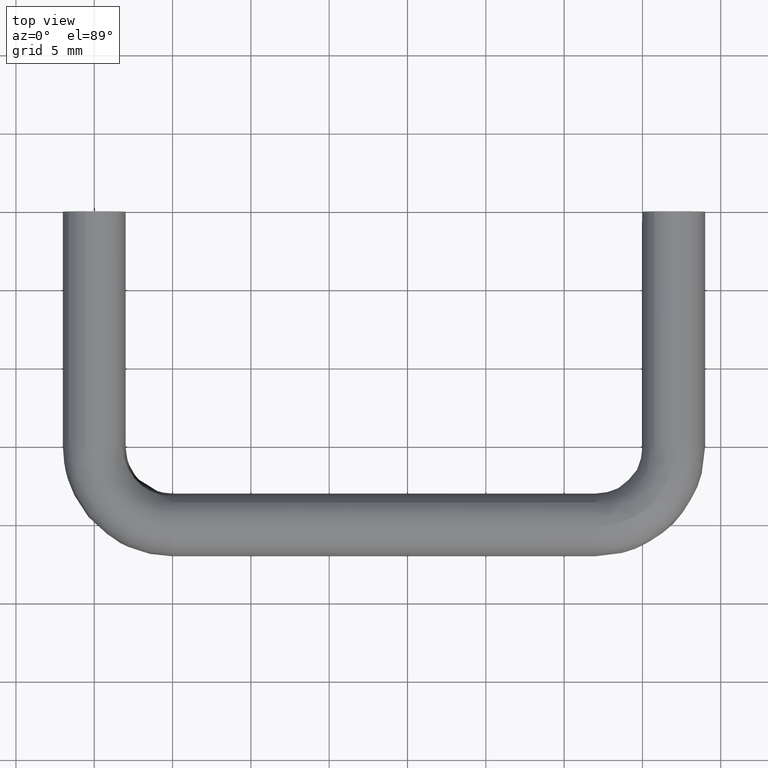
[diagram: clean part render]
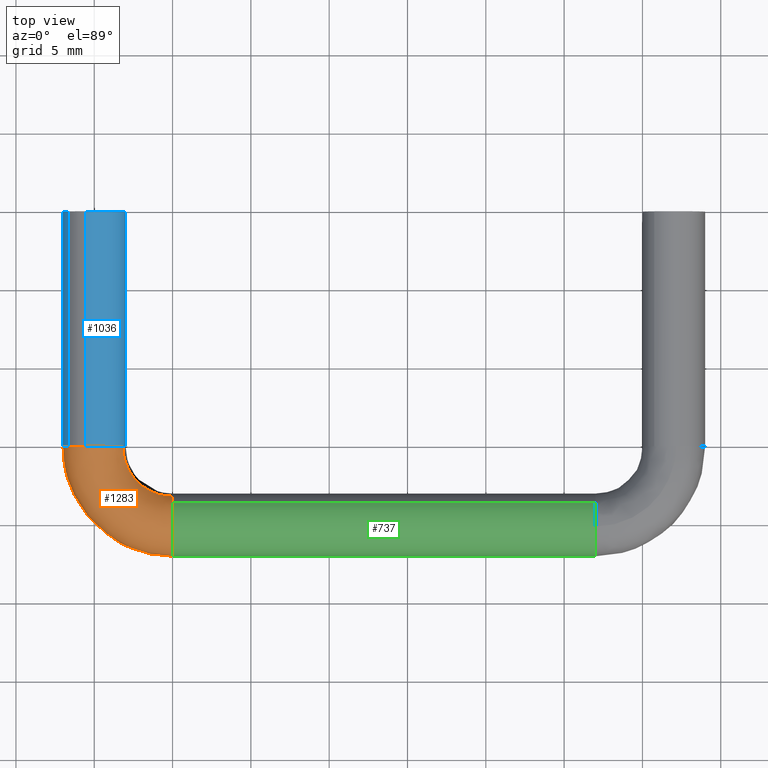
[diagram: same view with three faces highlighted in distinct colors, each labeled with its STEP entity id]
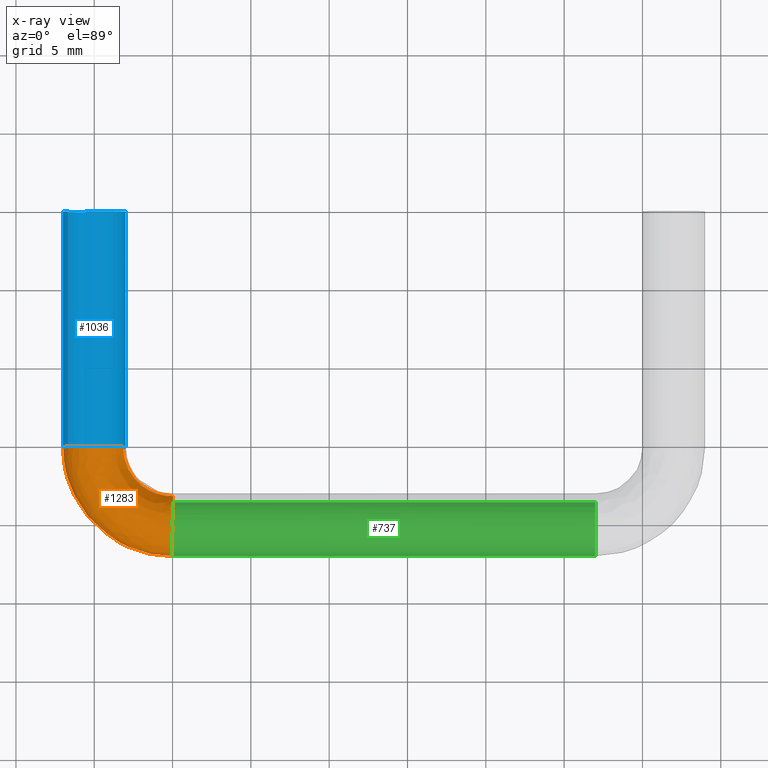
[diagram: x-ray of the same camera — body ghosted, the three highlighted faces saturated]
A machine part, top view with three faces highlighted in distinct colors.
The next image is the same camera in x-ray (body ghosted, the three faces saturated) — at least one of them is partly hidden behind the body in this view.
Their STEP definitions:

[orange] entity #1283 — the highlighted face is a freeform B-spline surface patch.
#661=CARTESIAN_POINT('',(5.000000000019877,-18.591260119800999,1.419666140301064));
#662=VERTEX_POINT('',#661);
#668=CARTESIAN_POINT('',(5.0,-22.0,0.0));
#669=VERTEX_POINT('',#668);
#670=CARTESIAN_POINT('',(5.0,-22.0,0.0));
#671=CARTESIAN_POINT('',(5.000000000000001,-22.000000000000007,2.000000000000000));
#672=CARTESIAN_POINT('',(5.0,-20.0,2.0));
#673=CARTESIAN_POINT('',(5.0,-19.176095105796154,2.000000000000000));
#674=CARTESIAN_POINT('',(5.000000000019877,-18.591260119801010,1.419666140301064));
#682=(BOUNDED_CURVE()B_SPLINE_CURVE(2,(#670,#671,#672,#673,#674),.UNSPECIFIED.,.F.,.U.)B_SPLINE_CURVE_WITH_KNOTS((3,2,3),(0.500000000000000,0.750000000000000,0.874417110250491),.UNSPECIFIED.)CURVE()GEOMETRIC_REPRESENTATION_ITEM()RATIONAL_B_SPLINE_CURVE((1.0,0.707106781186548,1.0,0.854236288413062,0.853556575026387))REPRESENTATION_ITEM(''));
#683=EDGE_CURVE('',#669,#662,#682,.T.);
#685=CARTESIAN_POINT('',(4.999999182295871,-21.325239809866911,-1.497911695108569));
#686=VERTEX_POINT('',#685);
#687=CARTESIAN_POINT('',(4.999999182295872,-21.325239809866911,-1.497911695108569));
#688=CARTESIAN_POINT('',(4.999999703351359,-22.000000000000114,-0.900934767641625));
#689=CARTESIAN_POINT('',(5.0,-22.0,0.0));
#697=(BOUNDED_CURVE()B_SPLINE_CURVE(2,(#687,#688,#689),.UNSPECIFIED.,.F.,.U.)B_SPLINE_CURVE_WITH_KNOTS((3,3),(0.365779830272935,0.500000000000000),.UNSPECIFIED.)CURVE()GEOMETRIC_REPRESENTATION_ITEM()RATIONAL_B_SPLINE_CURVE((0.854350168212415,0.842751289835808,1.0))REPRESENTATION_ITEM(''));
#698=EDGE_CURVE('',#686,#669,#697,.T.);
#802=CARTESIAN_POINT('',(4.999998076415995,-19.276704659011020,-1.864629681651536));
#803=VERTEX_POINT('',#802);
#804=CARTESIAN_POINT('',(4.999998076415995,-19.276704659011028,-1.864629681651536));
#805=CARTESIAN_POINT('',(4.999998199665956,-19.625684528366516,-1.999999999998314));
#806=CARTESIAN_POINT('',(4.999998379672770,-20.000000000000590,-1.999999999998482));
#807=CARTESIAN_POINT('',(4.999998744062953,-20.757731779851195,-1.999999999998824));
#808=CARTESIAN_POINT('',(4.999999182295871,-21.325239809866908,-1.497911695108569));
#816=(BOUNDED_CURVE()B_SPLINE_CURVE(2,(#804,#805,#806,#807,#808),.UNSPECIFIED.,.F.,.U.)B_SPLINE_CURVE_WITH_KNOTS((3,2,3),(0.188590419563113,0.250000000000000,0.365779830272935),.UNSPECIFIED.)CURVE()GEOMETRIC_REPRESENTATION_ITEM()RATIONAL_B_SPLINE_CURVE((0.891453693067869,0.928054201279426,1.0,0.864355491350739,0.854350168212415))REPRESENTATION_ITEM(''));
#817=EDGE_CURVE('',#803,#686,#816,.T.);
#834=CARTESIAN_POINT('',(5.000000000040116,-18.179788058653141,0.828751162037366));
#835=VERTEX_POINT('',#834);
#849=CARTESIAN_POINT('',(5.000000000019877,-18.591260119801010,1.419666140301064));
#850=CARTESIAN_POINT('',(5.000000000028706,-18.331453841666921,1.161859436222239));
#851=CARTESIAN_POINT('',(5.000000000040115,-18.179788058653134,0.828751162037366));
#859=(BOUNDED_CURVE()B_SPLINE_CURVE(2,(#849,#850,#851),.UNSPECIFIED.,.F.,.U.)B_SPLINE_CURVE_WITH_KNOTS((3,3),(0.874417110250492,0.929624510033231),.UNSPECIFIED.)CURVE()GEOMETRIC_REPRESENTATION_ITEM()RATIONAL_B_SPLINE_CURVE((0.853556575026387,0.853254966922805,0.881519651443544))REPRESENTATION_ITEM(''));
#860=EDGE_CURVE('',#662,#835,#859,.T.);
#892=CARTESIAN_POINT('',(-1.999999999999998,-15.0,0.0));
#893=VERTEX_POINT('',#892);
#894=CARTESIAN_POINT('',(-1.654334544362889,-15.0,1.123911569175985));
#895=VERTEX_POINT('',#894);
#896=CARTESIAN_POINT('',(-1.999999999999998,-15.0,0.0));
#897=CARTESIAN_POINT('',(-1.999999999999998,-15.000000000000002,0.615111482286668));
#898=CARTESIAN_POINT('',(-1.654334544362889,-14.999999999999998,1.123911569175985));
#906=(BOUNDED_CURVE()B_SPLINE_CURVE(2,(#896,#897,#898),.UNSPECIFIED.,.F.,.U.)B_SPLINE_CURVE_WITH_KNOTS((3,3),(0.500000000000000,0.596450219094675),.UNSPECIFIED.)CURVE()GEOMETRIC_REPRESENTATION_ITEM()RATIONAL_B_SPLINE_CURVE((1.0,0.887001539496392,0.861192889176255))REPRESENTATION_ITEM(''));
#907=EDGE_CURVE('',#893,#895,#906,.T.);
#965=CARTESIAN_POINT('',(-0.568029238874980,-15.0,1.917639899402601));
#966=VERTEX_POINT('',#965);
#972=CARTESIAN_POINT('',(1.820211941307585,-15.000000000132131,0.828751162123636));
#973=VERTEX_POINT('',#972);
#974=CARTESIAN_POINT('',(-0.568029238874980,-15.000000000000005,1.917639899402601));
#975=CARTESIAN_POINT('',(-0.289985426665518,-14.999999999999998,2.000000000000000));
#976=CARTESIAN_POINT('',(1.836910E-015,-15.0,2.0));
#977=CARTESIAN_POINT('',(1.286936769503952,-14.999999999999995,2.000000000000000));
#978=CARTESIAN_POINT('',(1.820211941307585,-15.000000000132138,0.828751162123636));
#986=(BOUNDED_CURVE()B_SPLINE_CURVE(2,(#974,#975,#976,#977,#978),.UNSPECIFIED.,.F.,.U.)B_SPLINE_CURVE_WITH_KNOTS((3,2,3),(0.701641638561408,0.750000000000000,0.929624510018458),.UNSPECIFIED.)CURVE()GEOMETRIC_REPRESENTATION_ITEM()RATIONAL_B_SPLINE_CURVE((0.908607387928295,0.943344655446826,1.0,0.789556796331618,0.881519651428418))REPRESENTATION_ITEM(''));
#987=EDGE_CURVE('',#966,#973,#986,.T.);
#1004=CARTESIAN_POINT('',(0.723292547146406,-15.000000000216991,-1.864630765390957));
#1005=VERTEX_POINT('',#1004);
#1019=CARTESIAN_POINT('',(0.723292547146406,-15.000000000216989,-1.864630765390957));
#1020=CARTESIAN_POINT('',(0.374313920989274,-15.000000000000004,-2.000000000000000));
#1021=CARTESIAN_POINT('',(1.836910E-015,-15.0,-2.0));
#1022=CARTESIAN_POINT('',(-1.999999999999998,-14.999999999999995,-2.000000000000000));
#1023=CARTESIAN_POINT('',(-1.999999999999998,-15.0,0.0));
#1031=(BOUNDED_CURVE()B_SPLINE_CURVE(2,(#1019,#1020,#1021,#1022,#1023),.UNSPECIFIED.,.F.,.U.)B_SPLINE_CURVE_WITH_KNOTS((3,2,3),(0.188590655656687,0.250000000000000,0.500000000000000),.UNSPECIFIED.)CURVE()GEOMETRIC_REPRESENTATION_ITEM()RATIONAL_B_SPLINE_CURVE((0.891453974494995,0.928054477880254,1.0,0.707106781186548,1.0))REPRESENTATION_ITEM(''));
#1032=EDGE_CURVE('',#1005,#893,#1031,.T.);
#1055=CARTESIAN_POINT('',(-1.654334544362889,-14.999999999999996,1.123911569175985));
#1056=CARTESIAN_POINT('',(-1.252923911299599,-15.0,1.714765418324617));
#1057=CARTESIAN_POINT('',(-0.568029238874980,-15.000000000000005,1.917639899402601));
#1065=(BOUNDED_CURVE()B_SPLINE_CURVE(2,(#1055,#1056,#1057),.UNSPECIFIED.,.F.,.U.)B_SPLINE_CURVE_WITH_KNOTS((3,3),(0.596450219094674,0.701641638561408),.UNSPECIFIED.)CURVE()GEOMETRIC_REPRESENTATION_ITEM()RATIONAL_B_SPLINE_CURVE((0.861192889176256,0.833045223083025,0.908607387928295))REPRESENTATION_ITEM(''));
#1066=EDGE_CURVE('',#895,#966,#1065,.T.);
#1190=CARTESIAN_POINT('',(0.775814570479479,-14.684258390601009,-1.848828358601665));
#1191=CARTESIAN_POINT('',(0.499429529044453,-18.381907449873200,-1.848828358601666));
#1192=CARTESIAN_POINT('',(4.127972323901496,-19.145238598560720,-1.848828358601666));
#1193=CARTESIAN_POINT('',(4.721547175218090,-19.270108056826359,-1.848828358601666));
#1194=CARTESIAN_POINT('',(5.326311729610633,-19.223382052573250,-1.848828358601665));
#1195=CARTESIAN_POINT('',(0.755587033203281,-14.682746460009813,-1.856696532989326));
#1196=CARTESIAN_POINT('',(0.477878520338914,-18.398101733989829,-1.856696532989326));
#1197=CARTESIAN_POINT('',(4.123796614141955,-19.165088098463144,-1.856696532989326));
#1198=CARTESIAN_POINT('',(4.720213802195782,-19.290555494878973,-1.856696532989326));
#1199=CARTESIAN_POINT('',(5.327874275285883,-19.243605742874124,-1.856696532989326));
#1200=CARTESIAN_POINT('',(-1.020782339847392,-14.549969683494647,-2.547674570167790));
#1201=CARTESIAN_POINT('',(-1.414717266292815,-19.820273396830057,-2.547674570167788));
#1202=CARTESIAN_POINT('',(3.757088456529241,-20.908258471385562,-2.547674570167790));
#1203=CARTESIAN_POINT('',(4.603117837060043,-21.086236413323931,-2.547674570167790));
#1204=CARTESIAN_POINT('',(5.465096036077124,-21.019637277014088,-2.547674570167790));
#1205=CARTESIAN_POINT('',(-1.801239185939189,-14.491633536854549,-0.828751161986569));
#1206=CARTESIAN_POINT('',(-2.246238773570618,-20.445111691961891,-0.828751161986569));
#1207=CARTESIAN_POINT('',(3.595973377386077,-21.674129169277229,-0.828751161986569));
#1208=CARTESIAN_POINT('',(4.551671134011472,-21.875177884314276,-0.828751161986569));
#1209=CARTESIAN_POINT('',(5.525385108984509,-21.799945691876015,-0.828751161986569));
#1210=CARTESIAN_POINT('',(-2.627684892722236,-14.429859899807987,0.991460779383422));
#1211=CARTESIAN_POINT('',(-3.126758155556638,-21.106768936729818,0.991460779383422));
#1212=CARTESIAN_POINT('',(3.425364501158451,-22.485129230834833,0.991460779383422));
#1213=CARTESIAN_POINT('',(4.497192904913289,-22.710608177312658,0.991460779383422));
#1214=CARTESIAN_POINT('',(5.589226749582247,-22.626234221035098,0.991460779383422));
#1215=CARTESIAN_POINT('',(-0.812536494287964,-14.565535259278340,1.820211941369991));
#1216=CARTESIAN_POINT('',(-1.192846063226259,-19.653550560379546,1.820211941369990));
#1217=CARTESIAN_POINT('',(3.800078079922968,-20.703904583184961,1.820211941369990));
#1218=CARTESIAN_POINT('',(4.616845133106254,-20.875726652859925,1.820211941369990));
#1219=CARTESIAN_POINT('',(5.449009369622135,-20.811431036702693,1.820211941369990));
#1220=CARTESIAN_POINT('',(1.002611904146309,-14.701210618748700,2.648963103356558));
#1221=CARTESIAN_POINT('',(0.741066029104122,-18.200332184029268,2.648963103356558));
#1222=CARTESIAN_POINT('',(4.174791658687484,-18.922679935535097,2.648963103356558));
#1223=CARTESIAN_POINT('',(4.736497361299220,-19.040845128407181,2.648963103356558));
#1224=CARTESIAN_POINT('',(5.308791989662021,-18.996627852370285,2.648963103356557));
#1225=CARTESIAN_POINT('',(1.837753957943666,-14.763634274277635,0.809597823114056));
#1226=CARTESIAN_POINT('',(1.630850753066910,-17.531712593207882,0.809597823114056));
#1227=CARTESIAN_POINT('',(4.347195781692025,-18.103146055111903,0.809597823114056));
#1228=CARTESIAN_POINT('',(4.791548842313497,-18.196623947302594,0.809597823114056));
#1229=CARTESIAN_POINT('',(5.244278569834207,-18.161644630112143,0.809597823114056));
#1230=CARTESIAN_POINT('',(1.846374826172559,-14.764278651011189,0.790610723094757));
#1231=CARTESIAN_POINT('',(1.640035677742284,-17.524810675909475,0.790610723094757));
#1232=CARTESIAN_POINT('',(4.348975446863697,-18.094686304390315,0.790610723094758));
#1233=CARTESIAN_POINT('',(4.792117118765956,-18.187909358538629,0.790610723094757));
#1234=CARTESIAN_POINT('',(5.243612621222468,-18.153025401443568,0.790610723094757));
#1242=(BOUNDED_SURFACE()B_SPLINE_SURFACE(2,2,((#1190,#1195,#1200,#1205,#1210,#1215,#1220,#1225,#1230),(#1191,#1196,#1201,#1206,#1211,#1216,#1221,#1226,#1231),(#1192,#1197,#1202,#1207,#1212,#1217,#1222,#1227,#1232),(#1193,#1198,#1203,#1208,#1213,#1218,#1223,#1228,#1233),(#1194,#1199,#1204,#1209,#1214,#1219,#1224,#1229,#1234)),.UNSPECIFIED.,.F.,.F.,.U.)B_SPLINE_SURFACE_WITH_KNOTS((3,2,3),(3,1,2,2,1,3),(0.0,10.331995302682950,12.494687987690400),(0.0,0.050461347654335,3.231621506679723,6.545330005664503,9.859038504649282,9.908566287316283),.UNSPECIFIED.)GEOMETRIC_REPRESENTATION_ITEM()RATIONAL_B_SPLINE_SURFACE(((0.950218290428155,0.946262668435485,0.692938615511372,0.963991257828157,0.681644755414839,0.963991257828157,0.681644755414839,0.968211301990943,0.972431346153729),(0.728218733824082,0.725187264036554,0.531047324902716,0.738773922018271,0.522392050022901,0.738773922018271,0.522392050022901,0.742008037008334,0.745242151998397),(0.985712559851391,0.981609180323259,0.718822509939086,1.0,0.707106781186548,1.0,0.707106781186548,1.004377678872621,1.008755357745242),(0.931813966436503,0.927934958995957,0.679517418598343,0.945320171812547,0.668442303881085,0.945320171812547,0.668442303881085,0.949458479956554,0.953596788100560),(0.898924298495076,0.895182206008864,0.655532907673289,0.911953783596509,0.644848704509821,0.911953783596509,0.644848704509821,0.915946024407767,0.919938265219024)))REPRESENTATION_ITEM('')SURFACE());
#1243=ORIENTED_EDGE('',*,*,#817,.T.);
#1244=ORIENTED_EDGE('',*,*,#698,.T.);
#1245=ORIENTED_EDGE('',*,*,#683,.T.);
#1246=ORIENTED_EDGE('',*,*,#860,.T.);
#1247=CARTESIAN_POINT('',(1.820211941307585,-15.000000000132136,0.828751162123636));
#1248=CARTESIAN_POINT('',(1.820211941584447,-17.580459706936388,0.828751161986568));
#1249=CARTESIAN_POINT('',(4.345400534915110,-18.111679873977490,0.828751161986568));
#1250=CARTESIAN_POINT('',(4.669157089520411,-18.179788058638351,0.828751161986568));
#1251=CARTESIAN_POINT('',(5.000000000040116,-18.179788058653138,0.828751162037366));
#1259=(BOUNDED_CURVE()B_SPLINE_CURVE(2,(#1247,#1248,#1249,#1250,#1251),.UNSPECIFIED.,.F.,.U.)B_SPLINE_CURVE_WITH_KNOTS((3,2,3),(-3.759886875613357,-2.0,-1.712481691703814),.UNSPECIFIED.)CURVE()GEOMETRIC_REPRESENTATION_ITEM()RATIONAL_B_SPLINE_CURVE((0.940720929692562,0.753120240891190,1.0,0.959666469660559,0.930929567731927))REPRESENTATION_ITEM(''));
#1260=EDGE_CURVE('',#973,#835,#1259,.T.);
#1261=ORIENTED_EDGE('',*,*,#1260,.F.);
#1262=ORIENTED_EDGE('',*,*,#987,.F.);
#1263=ORIENTED_EDGE('',*,*,#1066,.F.);
#1264=ORIENTED_EDGE('',*,*,#907,.F.);
#1265=ORIENTED_EDGE('',*,*,#1032,.F.);
#1266=CARTESIAN_POINT('',(0.723292547146406,-15.000000000216993,-1.864630765390957));
#1267=CARTESIAN_POINT('',(0.723292547371148,-18.470629945235213,-1.864630325652976));
#1268=CARTESIAN_POINT('',(4.119585846781998,-19.185101770405229,-1.864629804808369));
#1269=CARTESIAN_POINT('',(4.555026517399832,-19.276704604219240,-1.864629738030590));
#1270=CARTESIAN_POINT('',(4.999998076415995,-19.276704659011028,-1.864629681651536));
#1278=(BOUNDED_CURVE()B_SPLINE_CURVE(2,(#1266,#1267,#1268,#1269,#1270),.UNSPECIFIED.,.F.,.U.)B_SPLINE_CURVE_WITH_KNOTS((3,2,3),(-3.759886875588480,-2.0,-1.712482294589041),.UNSPECIFIED.)CURVE()GEOMETRIC_REPRESENTATION_ITEM()RATIONAL_B_SPLINE_CURVE((0.919560165698679,0.736179404170773,0.977505800795127,0.938079623593068,0.909989170393271))REPRESENTATION_ITEM(''));
#1279=EDGE_CURVE('',#1005,#803,#1278,.T.);
#1280=ORIENTED_EDGE('',*,*,#1279,.T.);
#1281=EDGE_LOOP('',(#1243,#1244,#1245,#1246,#1261,#1262,#1263,#1264,#1265,#1280));
#1282=FACE_OUTER_BOUND('',#1281,.T.);
#1283=ADVANCED_FACE('',(#1282),#1242,.T.);

[blue] entity #1036 — the highlighted face is a freeform B-spline surface patch.
#866=CARTESIAN_POINT('',(-1.654334544363574,0.375000000005425,1.123911569174978));
#867=CARTESIAN_POINT('',(-2.186699413562218,0.375000000005425,0.340300458233743));
#868=CARTESIAN_POINT('',(-1.917639469736385,0.375000000005425,-0.568030689407845));
#869=CARTESIAN_POINT('',(-1.349608780328540,0.375000000005425,-2.485670159144230));
#870=CARTESIAN_POINT('',(0.568030689407845,0.375000000005425,-1.917639469736385));
#871=CARTESIAN_POINT('',(2.485670159144230,0.375000000005426,-1.349608780328540));
#872=CARTESIAN_POINT('',(1.917639469736385,0.375000000005426,0.568030689407845));
#873=CARTESIAN_POINT('',(1.349608780328540,0.375000000005425,2.485670159144230));
#874=CARTESIAN_POINT('',(-0.568030689407845,0.375000000005425,1.917639469736385));
#875=CARTESIAN_POINT('',(-1.654334544363573,-15.384375000222555,1.123911569174978));
#876=CARTESIAN_POINT('',(-2.186699413562216,-15.384375000222546,0.340300458233743));
#877=CARTESIAN_POINT('',(-1.917639469736383,-15.384375000222549,-0.568030689407845));
#878=CARTESIAN_POINT('',(-1.349608780328538,-15.384375000222549,-2.485670159144230));
#879=CARTESIAN_POINT('',(0.568030689407847,-15.384375000222549,-1.917639469736385));
#880=CARTESIAN_POINT('',(2.485670159144233,-15.384375000222549,-1.349608780328540));
#881=CARTESIAN_POINT('',(1.917639469736387,-15.384375000222549,0.568030689407845));
#882=CARTESIAN_POINT('',(1.349608780328542,-15.384375000222549,2.485670159144230));
#883=CARTESIAN_POINT('',(-0.568030689407843,-15.384375000222549,1.917639469736385));
#891=(BOUNDED_SURFACE()B_SPLINE_SURFACE(2,1,((#866,#875),(#867,#876),(#868,#877),(#869,#878),(#870,#879),(#871,#880),(#872,#881),(#873,#882),(#874,#883)),.UNSPECIFIED.,.F.,.F.,.U.)B_SPLINE_SURFACE_WITH_KNOTS((3,2,2,2,3),(2,2),(0.0,1.855676759431465,5.169385258416224,8.483093757400983,11.796802256385741),(0.0,15.759375000227980),.UNSPECIFIED.)GEOMETRIC_REPRESENTATION_ITEM()RATIONAL_B_SPLINE_SURFACE(((0.855662221768731,0.855662221768731),(0.835979797464467,0.835979797464467),(1.0,1.0),(0.707106781186548,0.707106781186548),(1.0,1.0),(0.707106781186548,0.707106781186548),(1.0,1.0),(0.707106781186548,0.707106781186548),(1.0,1.0)))REPRESENTATION_ITEM('')SURFACE());
#892=CARTESIAN_POINT('',(-1.999999999999998,-15.0,0.0));
#893=VERTEX_POINT('',#892);
#894=CARTESIAN_POINT('',(-1.654334544362889,-15.0,1.123911569175985));
#895=VERTEX_POINT('',#894);
#896=CARTESIAN_POINT('',(-1.999999999999998,-15.0,0.0));
#897=CARTESIAN_POINT('',(-1.999999999999998,-15.000000000000002,0.615111482286668));
#898=CARTESIAN_POINT('',(-1.654334544362889,-14.999999999999998,1.123911569175985));
#906=(BOUNDED_CURVE()B_SPLINE_CURVE(2,(#896,#897,#898),.UNSPECIFIED.,.F.,.U.)B_SPLINE_CURVE_WITH_KNOTS((3,3),(0.500000000000000,0.596450219094675),.UNSPECIFIED.)CURVE()GEOMETRIC_REPRESENTATION_ITEM()RATIONAL_B_SPLINE_CURVE((1.0,0.887001539496392,0.861192889176255))REPRESENTATION_ITEM(''));
#907=EDGE_CURVE('',#893,#895,#906,.T.);
#908=ORIENTED_EDGE('',*,*,#907,.T.);
#909=CARTESIAN_POINT('',(-1.654334544362891,6.163132E-016,1.123911569175985));
#910=VERTEX_POINT('',#909);
#911=CARTESIAN_POINT('',(-1.654334544362891,6.163132E-016,1.123911569175985));
#912=CARTESIAN_POINT('',(-1.654334544362889,-15.0,1.123911569175985));
#913=QUASI_UNIFORM_CURVE('',1,(#911,#912),.UNSPECIFIED.,.F.,.U.);
#914=EDGE_CURVE('',#910,#895,#913,.T.);
#915=ORIENTED_EDGE('',*,*,#914,.F.);
#916=CARTESIAN_POINT('',(-2.0,0.0,0.0));
#917=VERTEX_POINT('',#916);
#918=CARTESIAN_POINT('',(-2.0,0.0,0.0));
#919=CARTESIAN_POINT('',(-2.000000000000000,0.0,0.615111482286668));
#920=CARTESIAN_POINT('',(-1.654334544362892,6.163132E-016,1.123911569175985));
#928=(BOUNDED_CURVE()B_SPLINE_CURVE(2,(#918,#919,#920),.UNSPECIFIED.,.F.,.U.)B_SPLINE_CURVE_WITH_KNOTS((3,3),(0.500000000000000,0.596450219094675),.UNSPECIFIED.)CURVE()GEOMETRIC_REPRESENTATION_ITEM()RATIONAL_B_SPLINE_CURVE((1.0,0.887001539496392,0.861192889176255))REPRESENTATION_ITEM(''));
#929=EDGE_CURVE('',#917,#910,#928,.T.);
#930=ORIENTED_EDGE('',*,*,#929,.F.);
#931=CARTESIAN_POINT('',(2.0,0.0,0.0));
#932=VERTEX_POINT('',#931);
#933=CARTESIAN_POINT('',(2.0,0.0,0.0));
#934=CARTESIAN_POINT('',(2.000000000000000,0.0,-2.000000000000000));
#935=CARTESIAN_POINT('',(0.0,0.0,-2.0));
#936=CARTESIAN_POINT('',(-2.000000000000000,0.0,-2.000000000000000));
#937=CARTESIAN_POINT('',(-2.0,0.0,0.0));
#945=(BOUNDED_CURVE()B_SPLINE_CURVE(2,(#933,#934,#935,#936,#937),.UNSPECIFIED.,.F.,.U.)B_SPLINE_CURVE_WITH_KNOTS((3,2,3),(0.0,0.250000000000000,0.500000000000000),.UNSPECIFIED.)CURVE()GEOMETRIC_REPRESENTATION_ITEM()RATIONAL_B_SPLINE_CURVE((1.0,0.707106781186548,1.0,0.707106781186548,1.0))REPRESENTATION_ITEM(''));
#946=EDGE_CURVE('',#932,#917,#945,.T.);
#947=ORIENTED_EDGE('',*,*,#946,.F.);
#948=CARTESIAN_POINT('',(-0.568029256808809,-2.775558E-016,1.917639894090389));
#949=VERTEX_POINT('',#948);
#950=CARTESIAN_POINT('',(-0.568029256808809,-2.775558E-016,1.917639894090389));
#951=CARTESIAN_POINT('',(-0.289985436214155,0.0,2.000000000000000));
#952=CARTESIAN_POINT('',(0.0,0.0,2.0));
#953=CARTESIAN_POINT('',(2.000000000000000,0.0,2.000000000000000));
#954=CARTESIAN_POINT('',(2.0,0.0,0.0));
#962=(BOUNDED_CURVE()B_SPLINE_CURVE(2,(#950,#951,#952,#953,#954),.UNSPECIFIED.,.F.,.U.)B_SPLINE_CURVE_WITH_KNOTS((3,2,3),(0.701641637059280,0.750000000000000,1.0),.UNSPECIFIED.)CURVE()GEOMETRIC_REPRESENTATION_ITEM()RATIONAL_B_SPLINE_CURVE((0.908607385770247,0.943344653686973,1.0,0.707106781186548,1.0))REPRESENTATION_ITEM(''));
#963=EDGE_CURVE('',#949,#932,#962,.T.);
#964=ORIENTED_EDGE('',*,*,#963,.F.);
#965=CARTESIAN_POINT('',(-0.568029238874980,-15.0,1.917639899402601));
#966=VERTEX_POINT('',#965);
#967=CARTESIAN_POINT('',(-0.568029256808809,-2.775558E-016,1.917639894090389));
#968=CARTESIAN_POINT('',(-0.568029238874980,-15.0,1.917639899402601));
#969=QUASI_UNIFORM_CURVE('',1,(#967,#968),.UNSPECIFIED.,.F.,.U.);
#970=EDGE_CURVE('',#949,#966,#969,.T.);
#971=ORIENTED_EDGE('',*,*,#970,.T.);
#972=CARTESIAN_POINT('',(1.820211941307585,-15.000000000132131,0.828751162123636));
#973=VERTEX_POINT('',#972);
#974=CARTESIAN_POINT('',(-0.568029238874980,-15.000000000000005,1.917639899402601));
#975=CARTESIAN_POINT('',(-0.289985426665518,-14.999999999999998,2.000000000000000));
#976=CARTESIAN_POINT('',(1.836910E-015,-15.0,2.0));
#977=CARTESIAN_POINT('',(1.286936769503952,-14.999999999999995,2.000000000000000));
#978=CARTESIAN_POINT('',(1.820211941307585,-15.000000000132138,0.828751162123636));
#986=(BOUNDED_CURVE()B_SPLINE_CURVE(2,(#974,#975,#976,#977,#978),.UNSPECIFIED.,.F.,.U.)B_SPLINE_CURVE_WITH_KNOTS((3,2,3),(0.701641638561408,0.750000000000000,0.929624510018458),.UNSPECIFIED.)CURVE()GEOMETRIC_REPRESENTATION_ITEM()RATIONAL_B_SPLINE_CURVE((0.908607387928295,0.943344655446826,1.0,0.789556796331618,0.881519651428418))REPRESENTATION_ITEM(''));
#987=EDGE_CURVE('',#966,#973,#986,.T.);
#988=ORIENTED_EDGE('',*,*,#987,.T.);
#989=CARTESIAN_POINT('',(2.000000000000002,-15.0,0.0));
#990=VERTEX_POINT('',#989);
#991=CARTESIAN_POINT('',(1.820211941307586,-15.000000000132140,0.828751162123636));
#992=CARTESIAN_POINT('',(2.000000000000002,-14.999999999999998,0.433877059706052));
#993=CARTESIAN_POINT('',(2.000000000000002,-15.0,0.0));
#1001=(BOUNDED_CURVE()B_SPLINE_CURVE(2,(#991,#992,#993),.UNSPECIFIED.,.F.,.U.)B_SPLINE_CURVE_WITH_KNOTS((3,3),(0.929624510018459,1.0),.UNSPECIFIED.)CURVE()GEOMETRIC_REPRESENTATION_ITEM()RATIONAL_B_SPLINE_CURVE((0.881519651428418,0.917549984854930,1.0))REPRESENTATION_ITEM(''));
#1002=EDGE_CURVE('',#973,#990,#1001,.T.);
#1003=ORIENTED_EDGE('',*,*,#1002,.T.);
#1004=CARTESIAN_POINT('',(0.723292547146406,-15.000000000216991,-1.864630765390957));
#1005=VERTEX_POINT('',#1004);
#1006=CARTESIAN_POINT('',(2.000000000000002,-15.0,0.0));
#1007=CARTESIAN_POINT('',(2.000000000000002,-15.000000000000007,-1.369394387691899));
#1008=CARTESIAN_POINT('',(0.723292547146406,-15.000000000216989,-1.864630765390957));
#1016=(BOUNDED_CURVE()B_SPLINE_CURVE(2,(#1006,#1007,#1008),.UNSPECIFIED.,.F.,.U.)B_SPLINE_CURVE_WITH_KNOTS((3,3),(0.0,0.188590655656687),.UNSPECIFIED.)CURVE()GEOMETRIC_REPRESENTATION_ITEM()RATIONAL_B_SPLINE_CURVE((1.0,0.779052303306294,0.891453974494995))REPRESENTATION_ITEM(''));
#1017=EDGE_CURVE('',#990,#1005,#1016,.T.);
#1018=ORIENTED_EDGE('',*,*,#1017,.T.);
#1019=CARTESIAN_POINT('',(0.723292547146406,-15.000000000216989,-1.864630765390957));
#1020=CARTESIAN_POINT('',(0.374313920989274,-15.000000000000004,-2.000000000000000));
#1021=CARTESIAN_POINT('',(1.836910E-015,-15.0,-2.0));
#1022=CARTESIAN_POINT('',(-1.999999999999998,-14.999999999999995,-2.000000000000000));
#1023=CARTESIAN_POINT('',(-1.999999999999998,-15.0,0.0));
#1031=(BOUNDED_CURVE()B_SPLINE_CURVE(2,(#1019,#1020,#1021,#1022,#1023),.UNSPECIFIED.,.F.,.U.)B_SPLINE_CURVE_WITH_KNOTS((3,2,3),(0.188590655656687,0.250000000000000,0.500000000000000),.UNSPECIFIED.)CURVE()GEOMETRIC_REPRESENTATION_ITEM()RATIONAL_B_SPLINE_CURVE((0.891453974494995,0.928054477880254,1.0,0.707106781186548,1.0))REPRESENTATION_ITEM(''));
#1032=EDGE_CURVE('',#1005,#893,#1031,.T.);
#1033=ORIENTED_EDGE('',*,*,#1032,.T.);
#1034=EDGE_LOOP('',(#908,#915,#930,#947,#964,#971,#988,#1003,#1018,#1033));
#1035=FACE_OUTER_BOUND('',#1034,.T.);
#1036=ADVANCED_FACE('',(#1035),#891,.T.);

[green] entity #737 — the highlighted face is a freeform B-spline surface patch.
#620=CARTESIAN_POINT('',(4.324998028318658,-18.591260087566504,1.419666108321545));
#621=CARTESIAN_POINT('',(4.324998028318658,-18.631890321656851,1.459983639379791));
#622=CARTESIAN_POINT('',(4.324998028318658,-18.674759903568528,1.497911441578005));
#623=CARTESIAN_POINT('',(4.324998028318658,-20.172671345146536,2.823151538009478));
#624=CARTESIAN_POINT('',(4.324998028318658,-21.497911441578012,1.325240096431473));
#625=CARTESIAN_POINT('',(4.324998028318658,-22.823151538009469,-0.172671345146532));
#626=CARTESIAN_POINT('',(4.324998028318658,-21.325240096431472,-1.497911441578005));
#627=CARTESIAN_POINT('',(32.691875049609202,-18.591260087566489,1.419666108321545));
#628=CARTESIAN_POINT('',(32.691875049609195,-18.631890321656844,1.459983639379791));
#629=CARTESIAN_POINT('',(32.691875049609202,-18.674759903568528,1.497911441578005));
#630=CARTESIAN_POINT('',(32.691875049609187,-20.172671345146536,2.823151538009478));
#631=CARTESIAN_POINT('',(32.691875049609202,-21.497911441578001,1.325240096431473));
#632=CARTESIAN_POINT('',(32.691875049609187,-22.823151538009469,-0.172671345146532));
#633=CARTESIAN_POINT('',(32.691875049609202,-21.325240096431472,-1.497911441578005));
#641=(BOUNDED_SURFACE()B_SPLINE_SURFACE(2,1,((#620,#627),(#621,#628),(#622,#629),(#623,#630),(#624,#631),(#625,#632),(#626,#633)),.UNSPECIFIED.,.F.,.F.,.U.)B_SPLINE_SURFACE_WITH_KNOTS((3,2,2,3),(2,2),(0.0,0.132548339959391,3.446256838944149,6.759965337928908),(0.0,28.366877021290549),.UNSPECIFIED.)GEOMETRIC_REPRESENTATION_ITEM()RATIONAL_B_SPLINE_SURFACE(((0.977505800795127,0.977505800795127),(0.988284271247462,0.988284271247462),(1.0,1.0),(0.707106781186548,0.707106781186548),(1.0,1.0),(0.707106781186548,0.707106781186548),(1.0,1.0)))REPRESENTATION_ITEM('')SURFACE());
#642=CARTESIAN_POINT('',(32.000000000036209,-20.139466503343179,1.995131347667422));
#643=VERTEX_POINT('',#642);
#644=CARTESIAN_POINT('',(32.0,-18.591260098857589,1.419666119525739));
#645=VERTEX_POINT('',#644);
#646=CARTESIAN_POINT('',(32.000000000036216,-20.139466503343176,1.995131347667422));
#647=CARTESIAN_POINT('',(32.0,-20.069818231942428,2.000000000000000));
#648=CARTESIAN_POINT('',(32.0,-20.0,2.0));
#649=CARTESIAN_POINT('',(32.0,-19.176095071274911,2.000000000000000));
#650=CARTESIAN_POINT('',(31.999999999999993,-18.591260098857589,1.419666119525738));
#658=(BOUNDED_CURVE()B_SPLINE_CURVE(2,(#646,#647,#648,#649,#650),.UNSPECIFIED.,.F.,.U.)B_SPLINE_CURVE_WITH_KNOTS((3,2,3),(0.737833686501982,0.750000000000000,0.874417114703642),.UNSPECIFIED.)CURVE()GEOMETRIC_REPRESENTATION_ITEM()RATIONAL_B_SPLINE_CURVE((0.972879876316946,0.985746277113888,1.0,0.854236283195871,0.853556574977730))REPRESENTATION_ITEM(''));
#659=EDGE_CURVE('',#643,#645,#658,.T.);
#660=ORIENTED_EDGE('',*,*,#659,.T.);
#661=CARTESIAN_POINT('',(5.000000000019877,-18.591260119800999,1.419666140301064));
#662=VERTEX_POINT('',#661);
#663=CARTESIAN_POINT('',(5.000000000019877,-18.591260119800999,1.419666140301064));
#664=CARTESIAN_POINT('',(32.0,-18.591260098857589,1.419666119525739));
#665=QUASI_UNIFORM_CURVE('',1,(#663,#664),.UNSPECIFIED.,.F.,.U.);
#666=EDGE_CURVE('',#662,#645,#665,.T.);
#667=ORIENTED_EDGE('',*,*,#666,.F.);
#668=CARTESIAN_POINT('',(5.0,-22.0,0.0));
#669=VERTEX_POINT('',#668);
#670=CARTESIAN_POINT('',(5.0,-22.0,0.0));
#671=CARTESIAN_POINT('',(5.000000000000001,-22.000000000000007,2.000000000000000));
#672=CARTESIAN_POINT('',(5.0,-20.0,2.0));
#673=CARTESIAN_POINT('',(5.0,-19.176095105796154,2.000000000000000));
#674=CARTESIAN_POINT('',(5.000000000019877,-18.591260119801010,1.419666140301064));
#682=(BOUNDED_CURVE()B_SPLINE_CURVE(2,(#670,#671,#672,#673,#674),.UNSPECIFIED.,.F.,.U.)B_SPLINE_CURVE_WITH_KNOTS((3,2,3),(0.500000000000000,0.750000000000000,0.874417110250491),.UNSPECIFIED.)CURVE()GEOMETRIC_REPRESENTATION_ITEM()RATIONAL_B_SPLINE_CURVE((1.0,0.707106781186548,1.0,0.854236288413062,0.853556575026387))REPRESENTATION_ITEM(''));
#683=EDGE_CURVE('',#669,#662,#682,.T.);
#684=ORIENTED_EDGE('',*,*,#683,.F.);
#685=CARTESIAN_POINT('',(4.999999182295871,-21.325239809866911,-1.497911695108569));
#686=VERTEX_POINT('',#685);
#687=CARTESIAN_POINT('',(4.999999182295872,-21.325239809866911,-1.497911695108569));
#688=CARTESIAN_POINT('',(4.999999703351359,-22.000000000000114,-0.900934767641625));
#689=CARTESIAN_POINT('',(5.0,-22.0,0.0));
#697=(BOUNDED_CURVE()B_SPLINE_CURVE(2,(#687,#688,#689),.UNSPECIFIED.,.F.,.U.)B_SPLINE_CURVE_WITH_KNOTS((3,3),(0.365779830272935,0.500000000000000),.UNSPECIFIED.)CURVE()GEOMETRIC_REPRESENTATION_ITEM()RATIONAL_B_SPLINE_CURVE((0.854350168212415,0.842751289835808,1.0))REPRESENTATION_ITEM(''));
#698=EDGE_CURVE('',#686,#669,#697,.T.);
#699=ORIENTED_EDGE('',*,*,#698,.F.);
#700=CARTESIAN_POINT('',(32.0,-21.325239806286259,-1.497911698276708));
#701=VERTEX_POINT('',#700);
#702=CARTESIAN_POINT('',(4.999999182295871,-21.325239809866911,-1.497911695108569));
#703=CARTESIAN_POINT('',(32.0,-21.325239806286259,-1.497911698276708));
#704=QUASI_UNIFORM_CURVE('',1,(#702,#703),.UNSPECIFIED.,.F.,.U.);
#705=EDGE_CURVE('',#686,#701,#704,.T.);
#706=ORIENTED_EDGE('',*,*,#705,.T.);
#707=CARTESIAN_POINT('',(32.0,-22.0,0.0));
#708=VERTEX_POINT('',#707);
#709=CARTESIAN_POINT('',(31.999999999999996,-21.325239806286262,-1.497911698276709));
#710=CARTESIAN_POINT('',(32.0,-21.999999999999996,-0.900934773392652));
#711=CARTESIAN_POINT('',(32.0,-22.0,0.0));
#719=(BOUNDED_CURVE()B_SPLINE_CURVE(2,(#709,#710,#711),.UNSPECIFIED.,.F.,.U.)B_SPLINE_CURVE_WITH_KNOTS((3,3),(0.365779829550916,0.500000000000000),.UNSPECIFIED.)CURVE()GEOMETRIC_REPRESENTATION_ITEM()RATIONAL_B_SPLINE_CURVE((0.854350168337204,0.842751288989911,1.0))REPRESENTATION_ITEM(''));
#720=EDGE_CURVE('',#701,#708,#719,.T.);
#721=ORIENTED_EDGE('',*,*,#720,.T.);
#722=CARTESIAN_POINT('',(32.0,-22.0,0.0));
#723=CARTESIAN_POINT('',(32.0,-22.0,1.865073694172844));
#724=CARTESIAN_POINT('',(32.000000000036216,-20.139466503343183,1.995131347667422));
#732=(BOUNDED_CURVE()B_SPLINE_CURVE(2,(#722,#723,#724),.UNSPECIFIED.,.F.,.U.)B_SPLINE_CURVE_WITH_KNOTS((3,3),(0.500000000000000,0.737833686501983),.UNSPECIFIED.)CURVE()GEOMETRIC_REPRESENTATION_ITEM()RATIONAL_B_SPLINE_CURVE((1.0,0.721360504072659,0.972879876316947))REPRESENTATION_ITEM(''));
#733=EDGE_CURVE('',#708,#643,#732,.T.);
#734=ORIENTED_EDGE('',*,*,#733,.T.);
#735=EDGE_LOOP('',(#660,#667,#684,#699,#706,#721,#734));
#736=FACE_OUTER_BOUND('',#735,.T.);
#737=ADVANCED_FACE('',(#736),#641,.T.);